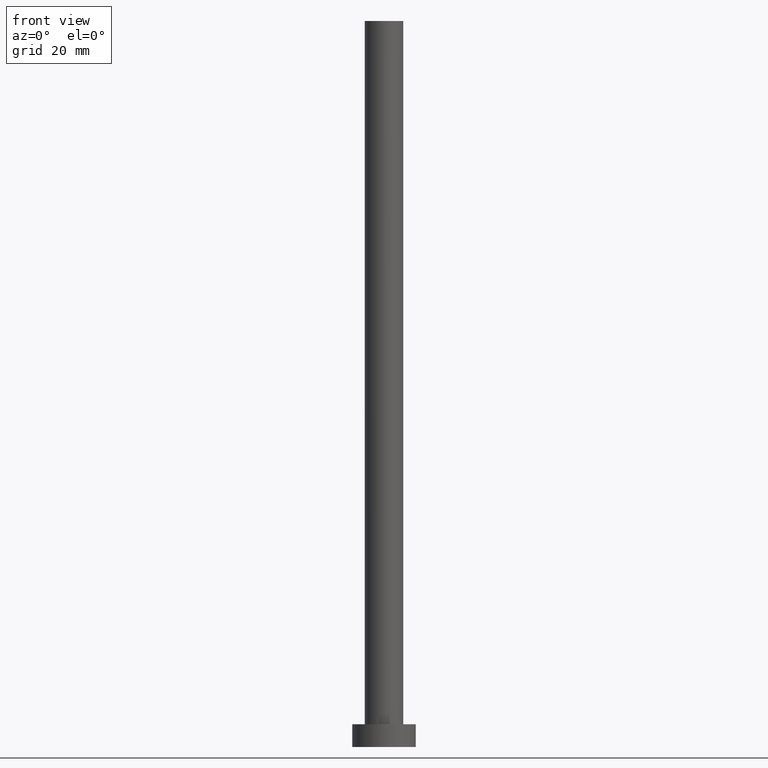
[diagram: clean part render]
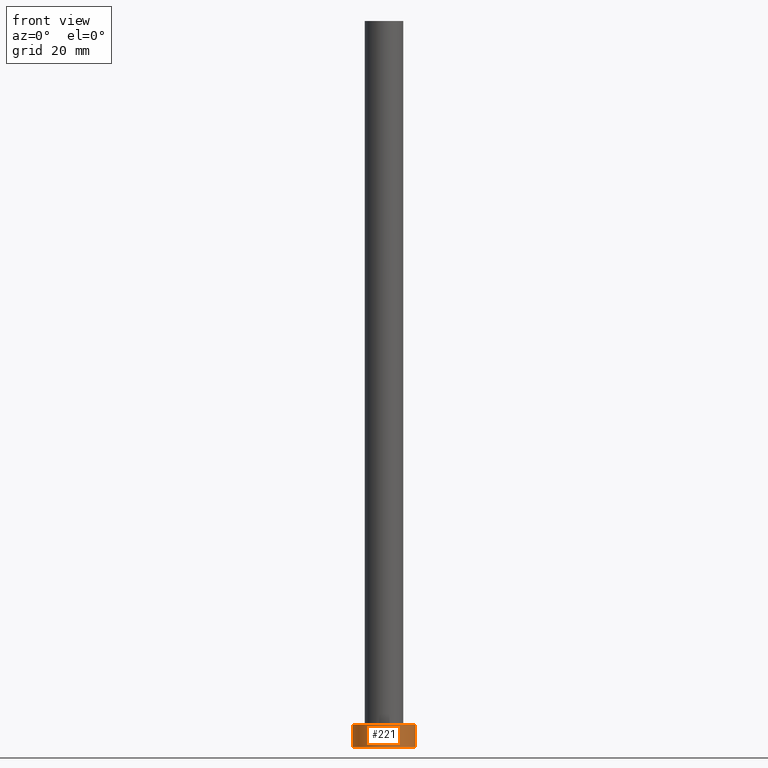
[diagram: same view with one face highlighted and labeled with its STEP entity id]
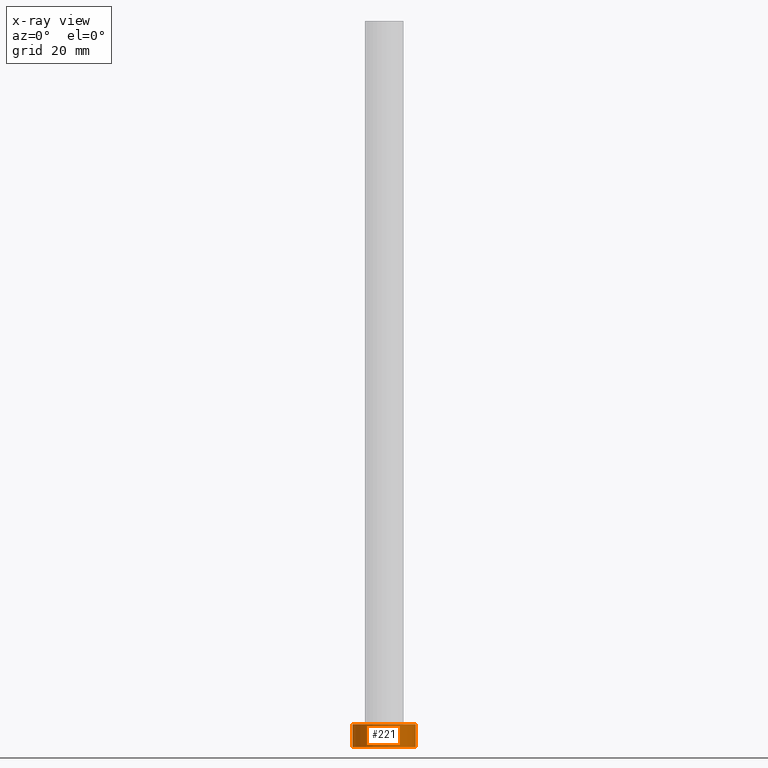
[diagram: x-ray of the same camera — body ghosted, the highlighted face saturated]
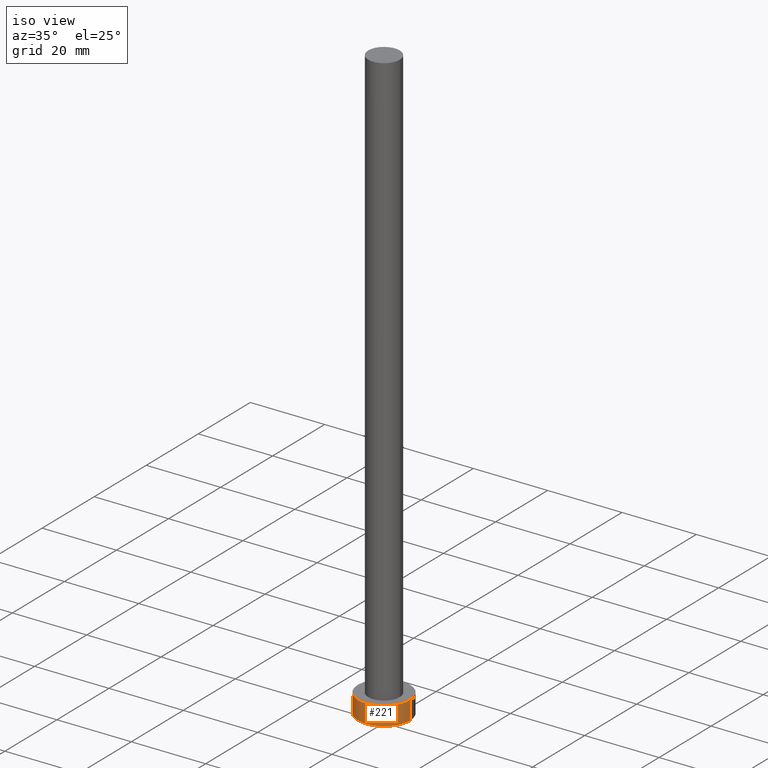
[diagram: same view with one face highlighted and labeled with its STEP entity id]
A machine part, front view. The second image highlights one B-rep face of the part: STEP entity #221.
The next image is the same camera in x-ray: the body ghosted, the highlighted face saturated — about 0% of this face is hidden behind the body in this view.
A second angle (iso view) of the same face is appended — the face is thin or edge-on in the first view.
In plain terms, the highlighted cylindrical surface (edge-blend (fillet) strip) has radius 7 mm, axis along (-0, -0, -1).
Its self-contained STEP definition (entity closure, byte-faithful):
#9 = EDGE_CURVE ( 'NONE', #121, #61, #216, .T. ) ;
#10 = CARTESIAN_POINT ( 'NONE',  ( 0.000000000000000000, 0.000000000000000000, 0.000000000000000000 ) ) ;
#13 = CARTESIAN_POINT ( 'NONE',  ( 7.000000000000000000, 8.572527594031473190E-16, 5.000000000000000000 ) ) ;
#27 = VERTEX_POINT ( 'NONE', #99 ) ;
#28 = DIRECTION ( 'NONE',  ( -0.000000000000000000, -0.000000000000000000, -1.000000000000000000 ) ) ;
#35 = CARTESIAN_POINT ( 'NONE',  ( 0.000000000000000000, 0.000000000000000000, 5.000000000000000000 ) ) ;
#41 = ORIENTED_EDGE ( 'NONE', *, *, #178, .T. ) ;
#42 = ORIENTED_EDGE ( 'NONE', *, *, #87, .F. ) ;
#45 = ORIENTED_EDGE ( 'NONE', *, *, #9, .F. ) ;
#46 = AXIS2_PLACEMENT_3D ( 'NONE', #10, #73, #245 ) ;
#61 = VERTEX_POINT ( 'NONE', #79 ) ;
#64 = ORIENTED_EDGE ( 'NONE', *, *, #170, .T. ) ;
#67 = AXIS2_PLACEMENT_3D ( 'NONE', #185, #28, #247 ) ;
#73 = DIRECTION ( 'NONE',  ( 0.000000000000000000, 0.000000000000000000, 1.000000000000000000 ) ) ;
#79 = CARTESIAN_POINT ( 'NONE',  ( 7.000000000000000000, 8.572527594031473190E-16, 0.000000000000000000 ) ) ;
#86 = EDGE_LOOP ( 'NONE', ( #45, #42, #64, #41 ) ) ;
#87 = EDGE_CURVE ( 'NONE', #154, #121, #126, .T. ) ;
#99 = CARTESIAN_POINT ( 'NONE',  ( -7.000000000000000000, 0.000000000000000000, 0.000000000000000000 ) ) ;
#101 = CARTESIAN_POINT ( 'NONE',  ( 7.000000000000000000, 8.572527594031473190E-16, 5.000000000000000000 ) ) ;
#108 = DIRECTION ( 'NONE',  ( 1.000000000000000000, 0.000000000000000000, 0.000000000000000000 ) ) ;
#109 = LINE ( 'NONE', #188, #143 ) ;
#121 = VERTEX_POINT ( 'NONE', #13 ) ;
#126 = CIRCLE ( 'NONE', #219, 7.000000000000000000 ) ;
#129 = CARTESIAN_POINT ( 'NONE',  ( -7.000000000000000000, 0.000000000000000000, 5.000000000000000000 ) ) ;
#139 = DIRECTION ( 'NONE',  ( -0.000000000000000000, -0.000000000000000000, -1.000000000000000000 ) ) ;
#143 = VECTOR ( 'NONE', #207, 1000.000000000000000 ) ;
#154 = VERTEX_POINT ( 'NONE', #129 ) ;
#166 = CYLINDRICAL_SURFACE ( 'NONE', #67, 7.000000000000000000 ) ;
#170 = EDGE_CURVE ( 'NONE', #154, #27, #109, .T. ) ;
#178 = EDGE_CURVE ( 'NONE', #27, #61, #255, .T. ) ;
#185 = CARTESIAN_POINT ( 'NONE',  ( 0.000000000000000000, 0.000000000000000000, 5.000000000000000000 ) ) ;
#188 = CARTESIAN_POINT ( 'NONE',  ( -7.000000000000000000, 0.000000000000000000, 5.000000000000000000 ) ) ;
#207 = DIRECTION ( 'NONE',  ( -0.000000000000000000, -0.000000000000000000, -1.000000000000000000 ) ) ;
#216 = LINE ( 'NONE', #101, #224 ) ;
#219 = AXIS2_PLACEMENT_3D ( 'NONE', #35, #226, #108 ) ;
#221 = ADVANCED_FACE ( 'NONE', ( #227 ), #166, .T. ) ;
#224 = VECTOR ( 'NONE', #139, 1000.000000000000000 ) ;
#226 = DIRECTION ( 'NONE',  ( 0.000000000000000000, 0.000000000000000000, 1.000000000000000000 ) ) ;
#227 = FACE_OUTER_BOUND ( 'NONE', #86, .T. ) ;
#245 = DIRECTION ( 'NONE',  ( 1.000000000000000000, 0.000000000000000000, 0.000000000000000000 ) ) ;
#247 = DIRECTION ( 'NONE',  ( -1.000000000000000000, 0.000000000000000000, 0.000000000000000000 ) ) ;
#255 = CIRCLE ( 'NONE', #46, 7.000000000000000000 ) ;